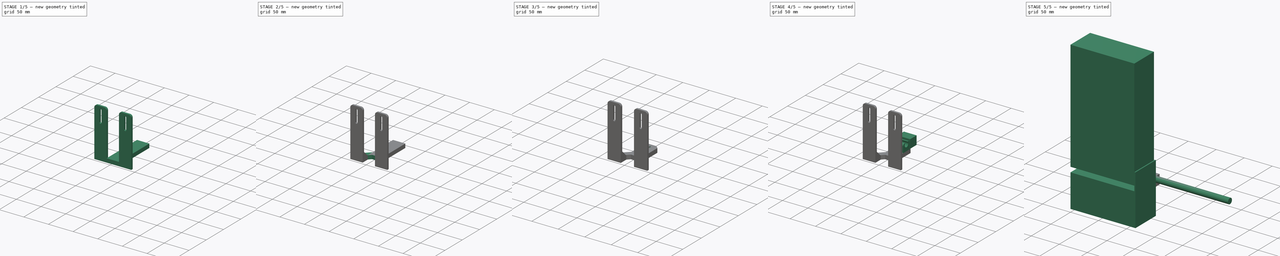
[diagram: build sequence overview — one tinted view per stage of 5, left to right]
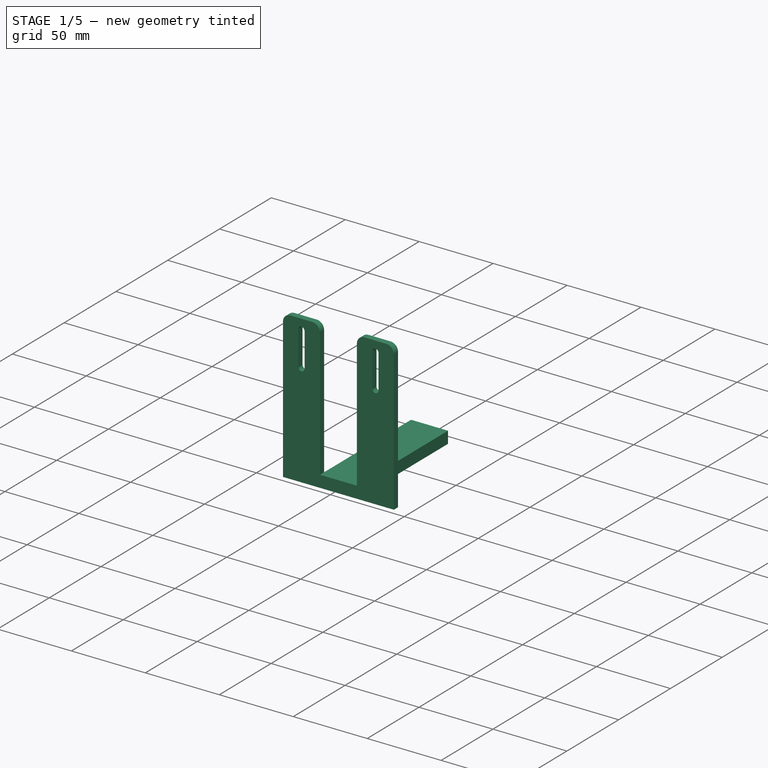
[diagram: stage 1 of 5 — iso view after this stage's code; geometry added in this stage tinted green]
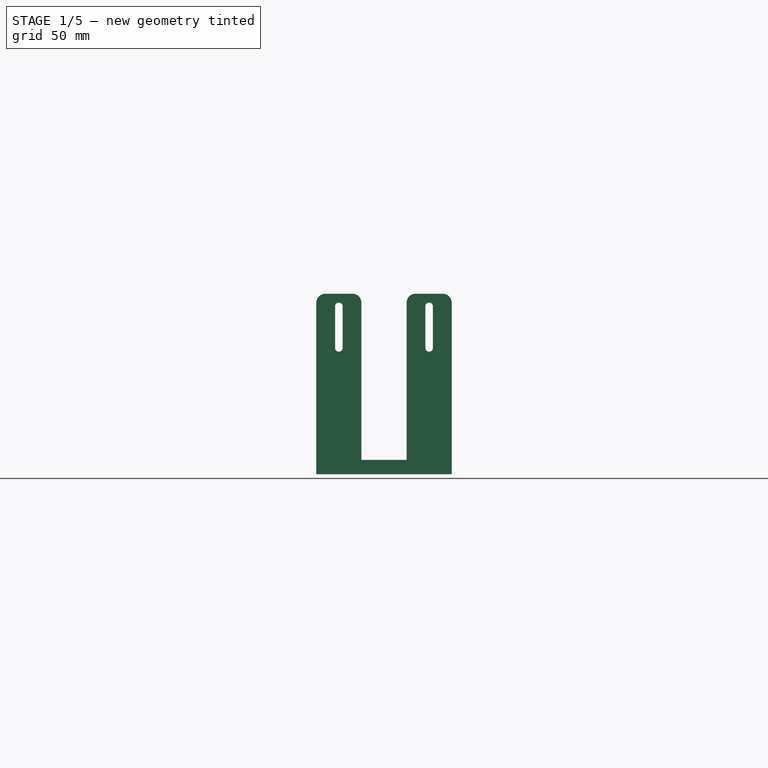
[diagram: stage 1 of 5 — front view after this stage's code; geometry added in this stage tinted green]
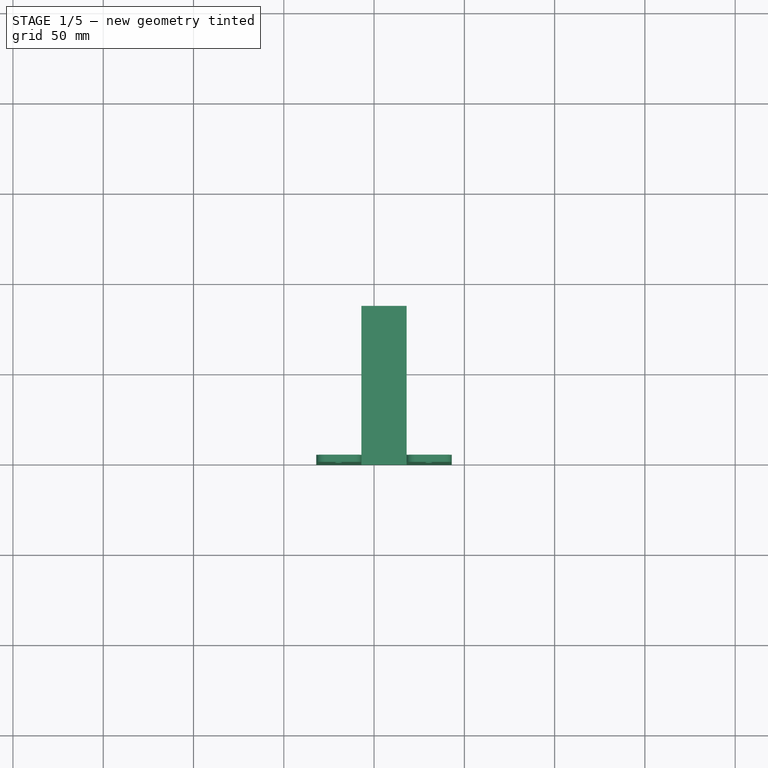
[diagram: stage 1 of 5 — top view after this stage's code; geometry added in this stage tinted green]
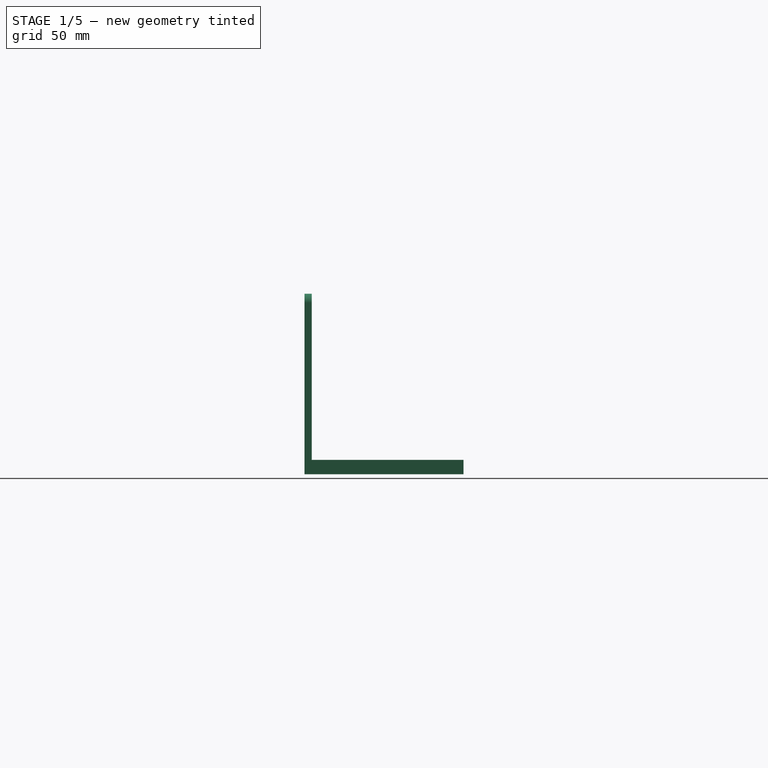
[diagram: stage 1 of 5 — right view after this stage's code; geometry added in this stage tinted green]
FCSTD DOCUMENT  (FreeCAD 0.14R2935 (Git))
Label: sujeccion-fuente-meta
License: CC-BY 3.0
LicenseURL: http://creativecommons.org/licenses/by/3.0/
objects: Part::Box×10, Sketcher::SketchObject×8, PartDesign::Pocket×8, PartDesign::Chamfer×6, Part::Cylinder×2, PartDesign::Fillet×2, Part::MultiFuse×2, Part::Cut×2, App::DocumentObjectGroup×1, Part::Feature×1
note: 49 computed .brp shape members not serialized (recipe doc carries the construction recipe); baked Part::Feature solids carry a one-line shape summary decoded from their .brp

FEATURE [App::DocumentObjectGroup] Group  label="Fuente"
  Group = -> [Box,Pocket]
FEATURE [Part::Feature] Solid
  Placement = pos=(181,121,0) rot=(0,0,1;1.5708rad)
  shape: bbox 22 x 18 x 47 mm, 2086 faces (baked)
FEATURE [Part::Box] Box002
  Height = 100
  Length = 75
  Placement = pos=(18,50,0) rot=(0,0,1;0rad)
  Width = 4
FEATURE [Part::Box] Box005
  Height = 8
  Length = 25
  Placement = pos=(43,53,0) rot=(0,0,1;0rad)
  Width = 85
FEATURE [Sketcher::SketchObject] Sketch001
  ExternalGeometry = -> [Box002]
  Placement = pos=(18,54,0) rot=(0,0.707107,0.707107;3.14159rad)
  Support = -> Box002 [Face4]
  sketch-geometry (21):
    g0: LineSegment [constr] StartX=-75 StartY=93 StartZ=0 EndX=-62.5 EndY=93 EndZ=0
    g1: LineSegment [constr] StartX=-62.5 StartY=93 StartZ=0 EndX=-12.5 EndY=93 EndZ=0
    g2: LineSegment [constr] StartX=-12.5 StartY=93 StartZ=0 EndX=0 EndY=93 EndZ=0
    g3: LineSegment [constr] StartX=-64.6 StartY=93 StartZ=0 EndX=-60.4 EndY=93 EndZ=0
    g4: LineSegment StartX=-60.4 StartY=93 StartZ=0 EndX=-60.4 EndY=70 EndZ=0
    g5: LineSegment [constr] StartX=-60.4 StartY=70 StartZ=0 EndX=-64.6 EndY=70 EndZ=0
    g6: LineSegment StartX=-64.6 StartY=70 StartZ=0 EndX=-64.6 EndY=93 EndZ=0
    g7: ArcOfCircle CenterX=-62.5 CenterY=93 CenterZ=0 NormalX=0 NormalY=0 NormalZ=1 Radius=2.1 StartAngle=0 EndAngle=3.14159
    g8: ArcOfCircle CenterX=-62.5 CenterY=70 CenterZ=0 NormalX=0 NormalY=0 NormalZ=1 Radius=2.1 StartAngle=3.14159 EndAngle=6.28319
    g9: LineSegment [constr] StartX=-14.6 StartY=93 StartZ=0 EndX=-10.4 EndY=93 EndZ=0
    g10: LineSegment StartX=-10.4 StartY=93 StartZ=0 EndX=-10.4 EndY=70 EndZ=0
    g11: LineSegment [constr] StartX=-10.4 StartY=70 StartZ=0 EndX=-14.6 EndY=70 EndZ=0
    g12: LineSegment StartX=-14.6 StartY=70 StartZ=0 EndX=-14.6 EndY=93 EndZ=0
    g13: ArcOfCircle CenterX=-12.5 CenterY=93 CenterZ=0 NormalX=0 NormalY=0 NormalZ=1 Radius=2.1 StartAngle=0 EndAngle=3.14159
    g14: ArcOfCircle CenterX=-12.5 CenterY=70 CenterZ=0 NormalX=0 NormalY=0 NormalZ=1 Radius=2.1 StartAngle=3.14159 EndAngle=6.28319
    g15: LineSegment [constr] StartX=-75 StartY=100 StartZ=0 EndX=-50 EndY=100 EndZ=0
    g16: LineSegment StartX=-50 StartY=100 StartZ=0 EndX=-25 EndY=100 EndZ=0
    g17: LineSegment [constr] StartX=-25 StartY=100 StartZ=0 EndX=0 EndY=100 EndZ=0
    g18: LineSegment StartX=-25 StartY=100 StartZ=0 EndX=-25 EndY=8 EndZ=0
    g19: LineSegment StartX=-25 StartY=8 StartZ=0 EndX=-50 EndY=8 EndZ=0
    g20: LineSegment StartX=-50 StartY=8 StartZ=0 EndX=-50 EndY=100 EndZ=0
  constraints (61):
    c: PointOnObject(g0,g-4)
    c: Horizontal(g0)
    c: Coincident(g0,g1)
    c: Horizontal(g1)
    c: Coincident(g1,g2)
    c: PointOnObject(g2,g-2)
    c: Horizontal(g2)
    c: Equal(g0,g2)
    c: Coincident(g3,g4)
    c: Coincident(g4,g5)
    c: Coincident(g5,g6)
    c: Coincident(g6,g3)
    c: Horizontal(g3)
    c: Horizontal(g5)
    c: Vertical(g4)
    c: Vertical(g6)
    c: PointOnObject(g7,g3)
    c: Coincident(g7,g3)
    c: Coincident(g7,g3)
    c: PointOnObject(g8,g5)
    c: Coincident(g8,g5)
    c: Coincident(g8,g4)
    c: Coincident(g7,g0)
    c: Coincident(g9,g10)
    c: Coincident(g10,g11)
    c: Coincident(g11,g12)
    c: Coincident(g12,g9)
    c: Horizontal(g9)
    c: Horizontal(g11)
    c: Vertical(g10)
    c: Vertical(g12)
    c: PointOnObject(g13,g9)
    c: Coincident(g13,g9)
    c: Coincident(g13,g9)
    c: PointOnObject(g14,g11)
    c: Coincident(g14,g11)
    c: Coincident(g14,g10)
    c: Equal(g5,g11)
    c: Equal(g4,g12)
    c: Coincident(g1,g13)
    c: Distance(g5) = 4.2
    c: Distance(g1) = 50
    c: DistanceY(g-1,g0) = 93
    c: DistanceY(g-1,g8) = 70
    c: Horizontal(g15)
    c: Coincident(g15,g16)
    c: Horizontal(g16)
    c: Coincident(g16,g17)
    c: Horizontal(g17)
    c: Coincident(g16,g18)
    c: Vertical(g18)
    c: Coincident(g18,g19)
    c: Horizontal(g19)
    c: Coincident(g19,g20)
    c: Vertical(g20)
    c: Coincident(g20,g15)
    c: Equal(g17,g15)
    c: Distance(g16) = 25
    c: Coincident(g17,g-3)
    c: DistanceY(g-1,g18) = 8
    c: Coincident(g15,g-4)
FEATURE [PartDesign::Pocket] Pocket001
  Length = 5
  Placement = pos=(18,50,0) rot=(0,0,1;0rad)
  Sketch = -> Sketch001
  Type = 0
FEATURE [PartDesign::Fillet] Fillet
  Base = -> Pocket001 [Edge37,Edge38,Edge21,Edge2]
  Placement = pos=(18,50,0) rot=(0,0,1;0rad)
  Radius = 5
FEATURE [Part::MultiFuse] Fusion
  Shapes = -> [Fillet,Box005]
FEATURE [Part::Box] Box008
  Height = 8
  Length = 25
  Placement = pos=(43,103,0) rot=(0,0,1;0rad)
  Width = 35
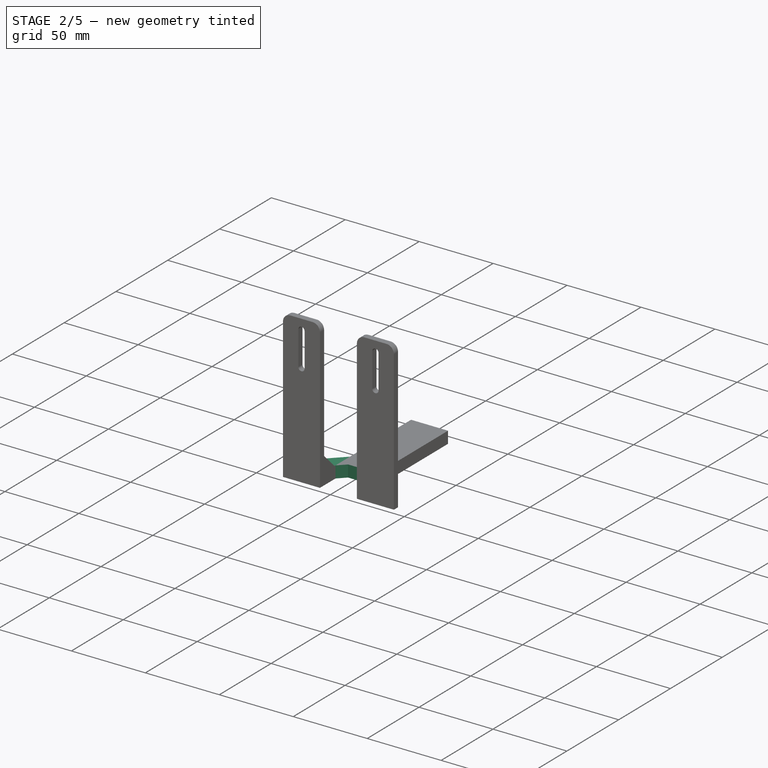
[diagram: stage 2 of 5 — iso view after this stage's code; geometry added in this stage tinted green]
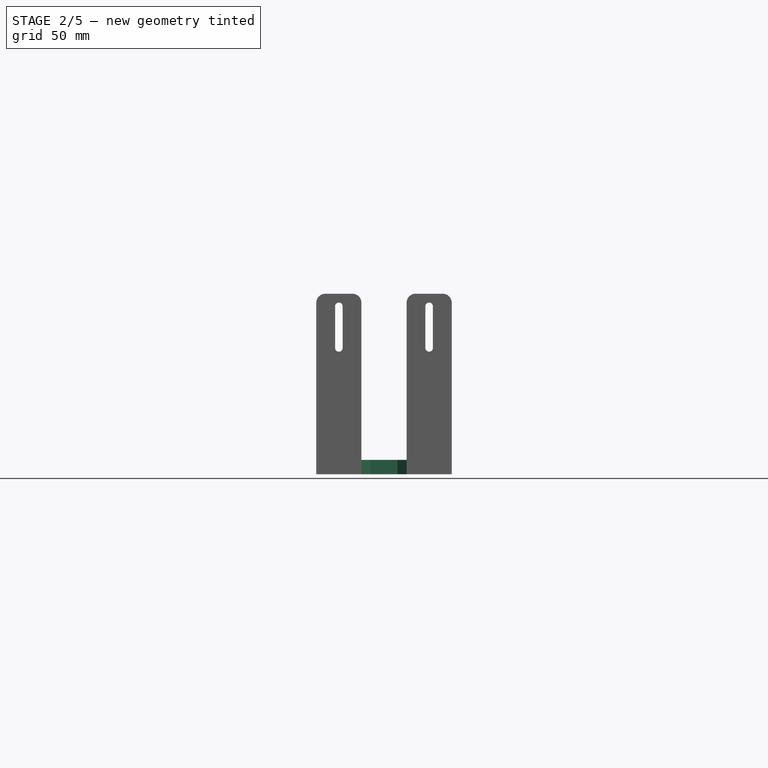
[diagram: stage 2 of 5 — front view after this stage's code; geometry added in this stage tinted green]
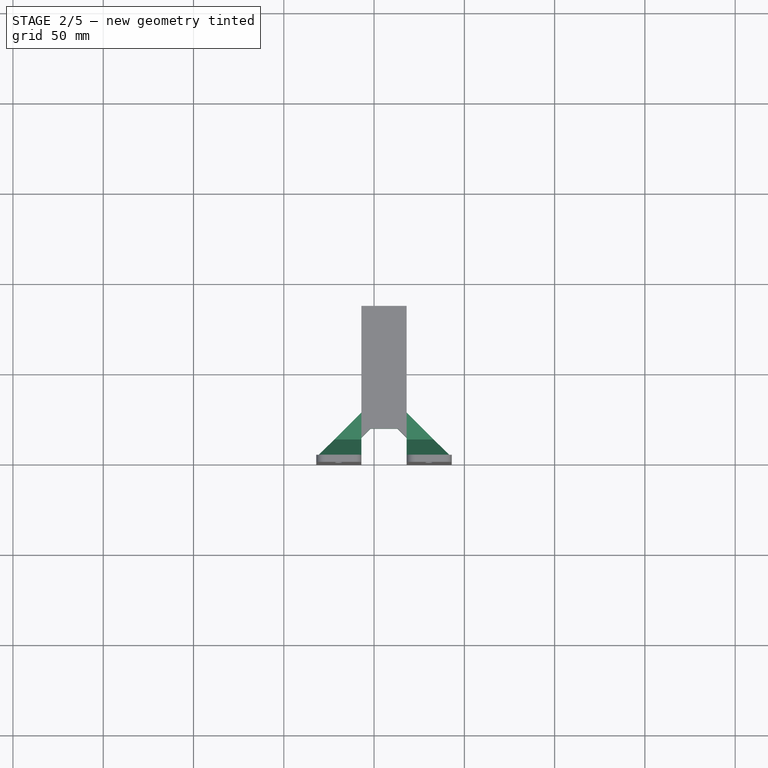
[diagram: stage 2 of 5 — top view after this stage's code; geometry added in this stage tinted green]
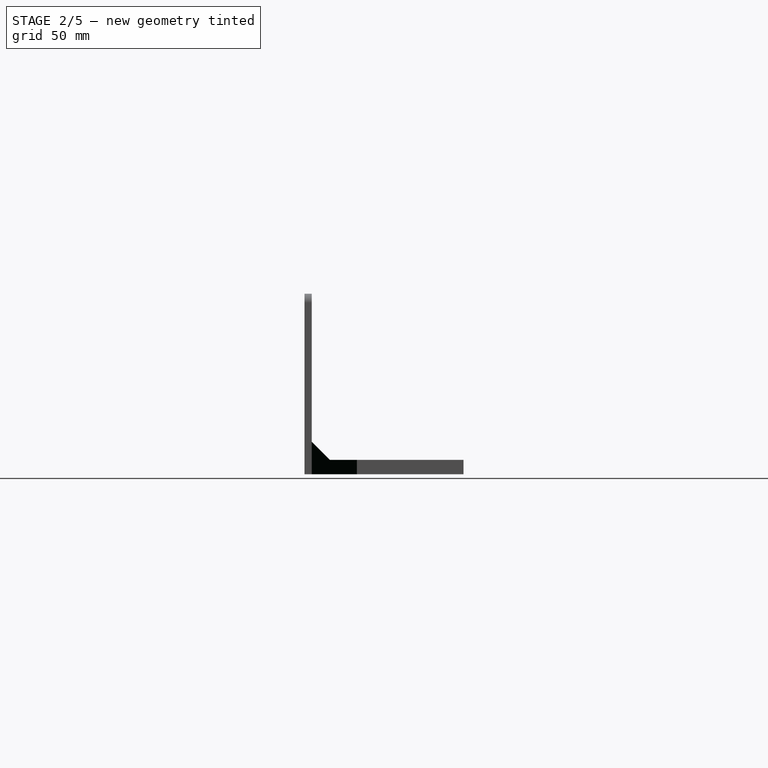
[diagram: stage 2 of 5 — right view after this stage's code; geometry added in this stage tinted green]
FEATURE [PartDesign::Chamfer] Chamfer
  Base = -> Fusion [Edge10,Edge7]
  Size = 24.99
FEATURE [Sketcher::SketchObject] Sketch002
  ExternalGeometry = -> [Chamfer]
  Placement = pos=(0,0,8) rot=(0,0,1;0rad)
  Support = -> Chamfer [Face2]
  sketch-geometry (4):
    g0: LineSegment StartX=43 StartY=70 StartZ=0 EndX=68 EndY=70 EndZ=0
    g1: LineSegment StartX=68 StartY=70 StartZ=0 EndX=68 EndY=50 EndZ=0
    g2: LineSegment StartX=68 StartY=50 StartZ=0 EndX=43 EndY=50 EndZ=0
    g3: LineSegment StartX=43 StartY=50 StartZ=0 EndX=43 EndY=70 EndZ=0
  constraints (11):
    c: Coincident(g0,g1)
    c: Coincident(g1,g2)
    c: Coincident(g2,g3)
    c: Coincident(g3,g0)
    c: Horizontal(g0)
    c: Horizontal(g2)
    c: Vertical(g1)
    c: Vertical(g3)
    c: Coincident(g-3,g1)
    c: Coincident(g-3,g2)
    c: Distance(g1) = 20
FEATURE [PartDesign::Pocket] Pocket002
  Length = 10
  Sketch = -> Sketch002
  Type = 0
FEATURE [PartDesign::Chamfer] Chamfer001
  Base = -> Pocket002 [Edge40,Edge39]
  Size = 5
FEATURE [PartDesign::Chamfer] Chamfer002  label="V1"
  Base = -> Chamfer001 [Edge3,Edge10]
  Size = 10
FEATURE [Sketcher::SketchObject] Sketch003
  ExternalGeometry = -> [Chamfer002]
  Placement = pos=(0,0,0) rot=(1,0,0;3.14159rad)
  Support = -> Chamfer002 [Face15]
  sketch-geometry (8):
    g0: LineSegment [constr] StartX=43 StartY=-132 StartZ=0 EndX=55.5 EndY=-132 EndZ=0
    g1: LineSegment [constr] StartX=55.5 StartY=-132 StartZ=0 EndX=68 EndY=-132 EndZ=0
    g2: LineSegment [constr] StartX=53.8 StartY=-132 StartZ=0 EndX=57.2 EndY=-132 EndZ=0
    g3: LineSegment StartX=57.2 StartY=-132 StartZ=0 EndX=57.2 EndY=-107 EndZ=0
    g4: LineSegment [constr] StartX=57.2 StartY=-107 StartZ=0 EndX=53.8 EndY=-107 EndZ=0
    g5: LineSegment StartX=53.8 StartY=-107 StartZ=0 EndX=53.8 EndY=-132 EndZ=0
    g6: ArcOfCircle CenterX=55.5 CenterY=-132 CenterZ=0 NormalX=0 NormalY=0 NormalZ=1 Radius=1.7 StartAngle=3.14159 EndAngle=6.28319
    g7: ArcOfCircle CenterX=55.5 CenterY=-107 CenterZ=0 NormalX=0 NormalY=0 NormalZ=1 Radius=1.7 StartAngle=0 EndAngle=3.14159
  constraints (24):
    c: PointOnObject(g0,g-3)
    c: Coincident(g0,g1)
    c: PointOnObject(g1,g-4)
    c: Horizontal(g0)
    c: Horizontal(g1)
    c: Equal(g0,g1)
    c: Coincident(g2,g3)
    c: Coincident(g3,g4)
    c: Coincident(g4,g5)
    c: Coincident(g5,g2)
    c: Horizontal(g2)
    c: Horizontal(g4)
    c: Vertical(g3)
    c: Vertical(g5)
    c: PointOnObject(g6,g2)
    c: Coincident(g6,g2)
    c: Coincident(g6,g2)
    c: PointOnObject(g7,g4)
    c: Coincident(g7,g4)
    c: Coincident(g7,g3)
    c: Coincident(g0,g6)
    c: Radius(g6) = 1.7
    c: Distance(g1,g-4) = 6
    c: Distance(g0,g7) = 25
FEATURE [PartDesign::Pocket] Pocket003
  Length = 11
  Sketch = -> Sketch003
  Type = 0
FEATURE [Sketcher::SketchObject] Sketch004
  ExternalGeometry = -> [Pocket003]
  Placement = pos=(0,0,0) rot=(1,0,0;3.14159rad)
  Support = -> Pocket003 [Face19]
  sketch-geometry (6):
    g0: LineSegment [constr] StartX=59.25 StartY=-132 StartZ=0 EndX=51.75 EndY=-132 EndZ=0
    g1: LineSegment StartX=51.75 StartY=-132 StartZ=0 EndX=51.75 EndY=-107 EndZ=0
    g2: LineSegment [constr] StartX=51.75 StartY=-107 StartZ=0 EndX=59.25 EndY=-107 EndZ=0
    g3: LineSegment StartX=59.25 StartY=-107 StartZ=0 EndX=59.25 EndY=-132 EndZ=0
    g4: ArcOfCircle CenterX=55.5 CenterY=-132 CenterZ=0 NormalX=0 NormalY=0 NormalZ=1 Radius=3.75 StartAngle=3.14159 EndAngle=6.28319
    g5: ArcOfCircle CenterX=55.5 CenterY=-107 CenterZ=0 NormalX=0 NormalY=0 NormalZ=1 Radius=3.75 StartAngle=0 EndAngle=3.14159
  constraints (17):
    c: Coincident(g0,g1)
    c: Coincident(g1,g2)
    c: Coincident(g2,g3)
    c: Coincident(g3,g0)
    c: Horizontal(g0)
    c: Horizontal(g2)
    c: Vertical(g1)
    c: Vertical(g3)
    c: PointOnObject(g4,g0)
    c: Coincident(g4,g0)
    c: Coincident(g4,g0)
    c: Coincident(g4,g-6)
    c: PointOnObject(g5,g2)
    c: Coincident(g5,g1)
    c: Coincident(g5,g2)
    c: Coincident(g5,g-5)
    c: Radius(g4) = 3.75
FEATURE [PartDesign::Pocket] Pocket004
  Length = 4.5
  Sketch = -> Sketch004
  Type = 0
FEATURE [PartDesign::Chamfer] Chamfer004
  Base = -> Pocket004 [Edge38,Edge33]
  Size = 5
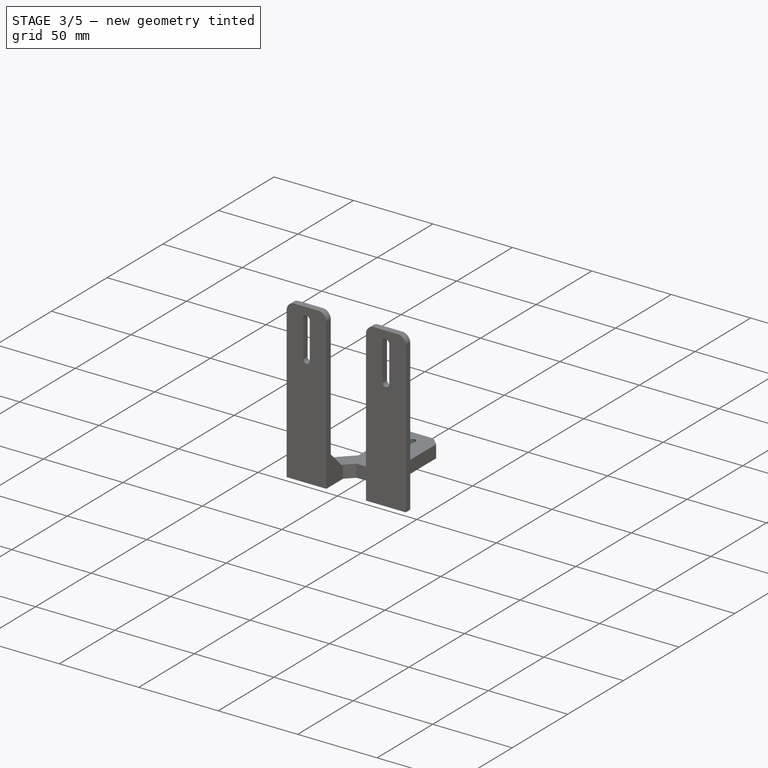
[diagram: stage 3 of 5 — iso view after this stage's code; geometry added in this stage tinted green]
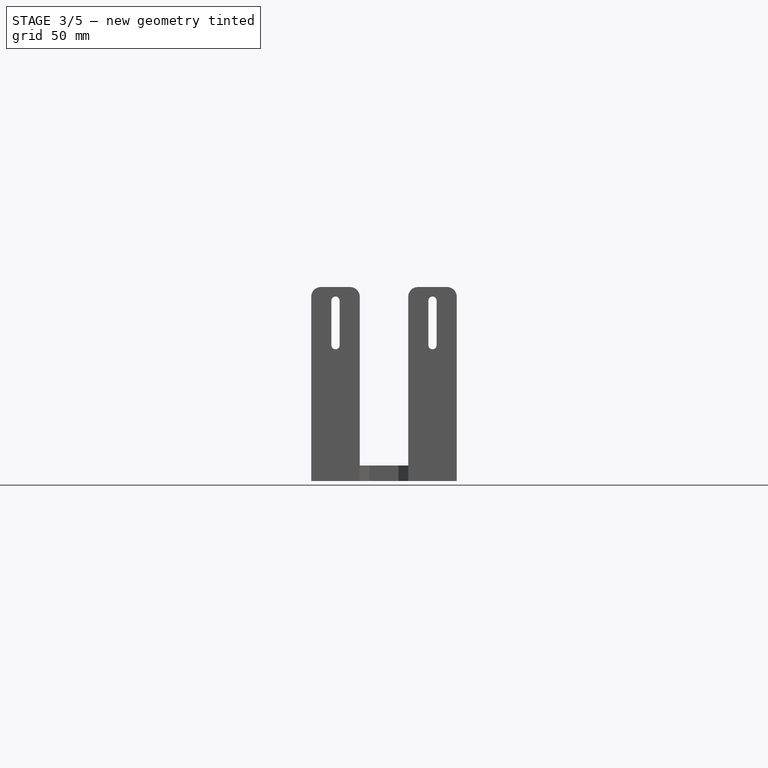
[diagram: stage 3 of 5 — front view after this stage's code; geometry added in this stage tinted green]
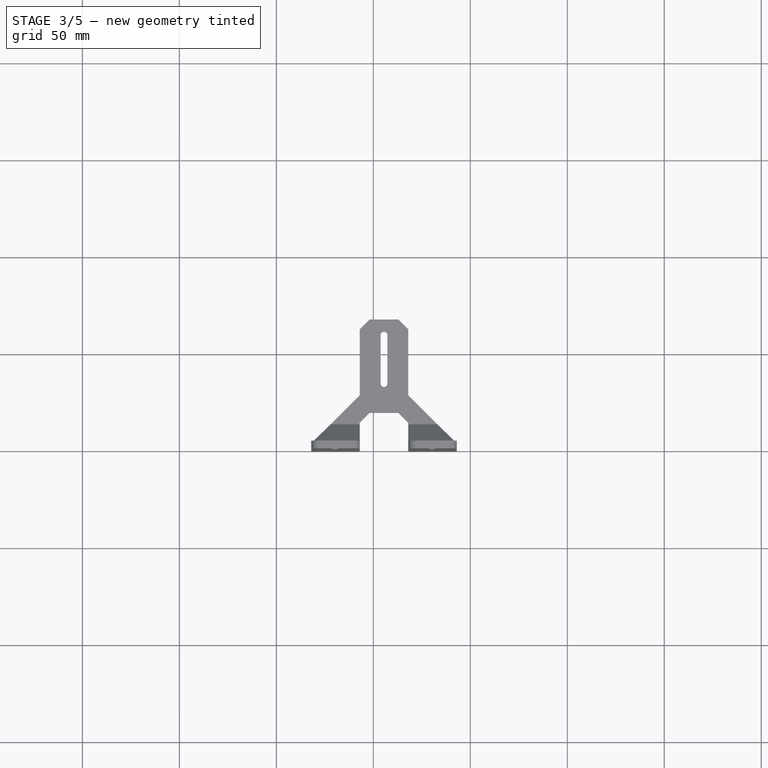
[diagram: stage 3 of 5 — top view after this stage's code; geometry added in this stage tinted green]
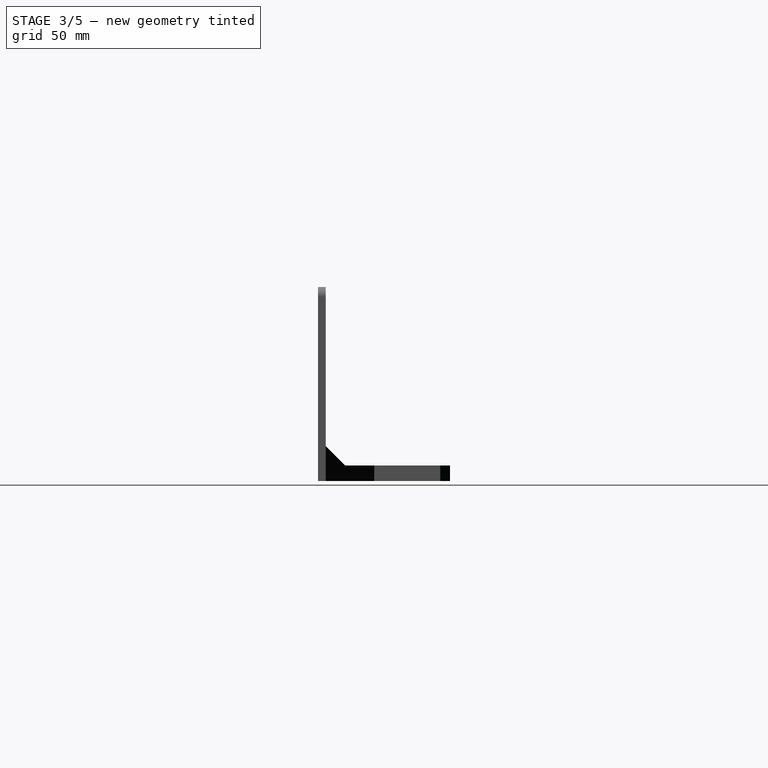
[diagram: stage 3 of 5 — right view after this stage's code; geometry added in this stage tinted green]
FEATURE [Part::Box] Box009
  Height = 8
  Length = 25
  Placement = pos=(43,118,0) rot=(0,0,1;0rad)
  Width = 20
FEATURE [Part::MultiFuse] Fusion001
  Shapes = -> [Box008,Chamfer004]
FEATURE [Part::Cut] Cut001
  Base = -> Fusion001
  Tool = -> Box009
FEATURE [PartDesign::Chamfer] Chamfer005
  Base = -> Cut001 [Edge44,Edge19]
  Size = 5
FEATURE [Sketcher::SketchObject] Sketch006
  ExternalGeometry = -> [Chamfer005]
  Placement = pos=(0,0,-8e-12) rot=(1,0,0;3.14159rad)
  Support = -> Chamfer005 [Face16]
  sketch-geometry (10):
    g0: LineSegment [constr] StartX=53.75 StartY=-85 StartZ=0 EndX=57.25 EndY=-85 EndZ=0
    g1: LineSegment StartX=57.25 StartY=-85 StartZ=0 EndX=57.25 EndY=-110 EndZ=0
    g2: LineSegment [constr] StartX=57.25 StartY=-110 StartZ=0 EndX=53.75 EndY=-110 EndZ=0
    g3: LineSegment StartX=53.75 StartY=-110 StartZ=0 EndX=53.75 EndY=-85 EndZ=0
    g4: ArcOfCircle CenterX=55.5 CenterY=-110 CenterZ=0 NormalX=0 NormalY=0 NormalZ=1 Radius=1.75 StartAngle=3.14159 EndAngle=6.28319
    g5: ArcOfCircle CenterX=55.5 CenterY=-85 CenterZ=0 NormalX=0 NormalY=0 NormalZ=1 Radius=1.75 StartAngle=0 EndAngle=3.14159
    g6: LineSegment [constr] StartX=43 StartY=-97.5 StartZ=0 EndX=55.5 EndY=-97.5 EndZ=0
    g7: LineSegment [constr] StartX=55.5 StartY=-97.5 StartZ=0 EndX=68 EndY=-97.5 EndZ=0
    g8: LineSegment [constr] StartX=55.5 StartY=-85 StartZ=0 EndX=55.5 EndY=-97.5 EndZ=0
    g9: LineSegment [constr] StartX=55.5 StartY=-97.5 StartZ=0 EndX=55.5 EndY=-110 EndZ=0
  constraints (29):
    c: Coincident(g0,g1)
    c: Coincident(g1,g2)
    c: Coincident(g2,g3)
    c: Coincident(g3,g0)
    c: Horizontal(g0)
    c: Horizontal(g2)
    c: Vertical(g1)
    c: Vertical(g3)
    c: PointOnObject(g4,g2)
    c: Coincident(g4,g2)
    c: Coincident(g4,g1)
    c: PointOnObject(g5,g0)
    c: Coincident(g5,g0)
    c: Coincident(g5,g0)
    c: PointOnObject(g6,g-4)
    c: Horizontal(g6)
    c: Coincident(g6,g7)
    c: PointOnObject(g7,g-5)
    c: Horizontal(g7)
    c: Equal(g6,g7)
    c: Coincident(g8,g5)
    c: Vertical(g8)
    c: Coincident(g8,g9)
    c: Coincident(g9,g4)
    c: Equal(g8,g9)
    c: Coincident(g8,g6)
    c: Radius(g5) = 1.75
    c: Distance(g1) = 25
    c: Distance(g4,g-3) = 8
FEATURE [PartDesign::Pocket] Pocket006
  Length = 8
  Sketch = -> Sketch006
  Type = 0
FEATURE [Sketcher::SketchObject] Sketch007
  ExternalGeometry = -> [Pocket006]
  Placement = pos=(0,0,-8e-12) rot=(1,0,0;3.14159rad)
  Support = -> Pocket006 [Face20]
  sketch-geometry (4):
    g0: ArcOfCircle CenterX=55.5 CenterY=-85 CenterZ=0 NormalX=0 NormalY=0 NormalZ=1 Radius=4.27086 StartAngle=6.18431 EndAngle=9.52365
    g1: ArcOfCircle CenterX=55.5 CenterY=-110 CenterZ=0 NormalX=0 NormalY=0 NormalZ=1 Radius=4.25 StartAngle=3.14159 EndAngle=6.28319
    g2: LineSegment StartX=51.25 StartY=-85.4216 StartZ=0 EndX=51.25 EndY=-110 EndZ=0
    g3: LineSegment StartX=59.75 StartY=-85.4216 StartZ=0 EndX=59.75 EndY=-110 EndZ=0
  constraints (9):
    c: Coincident(g0,g-3)
    c: Coincident(g1,g-4)
    c: Coincident(g2,g0)
    c: Coincident(g2,g1)
    c: Vertical(g2)
    c: Coincident(g3,g0)
    c: Coincident(g3,g1)
    c: Vertical(g3)
    c: Radius(g1) = 4.25
FEATURE [PartDesign::Pocket] Pocket007
  Length = 5
  Sketch = -> Sketch007
  Type = 0
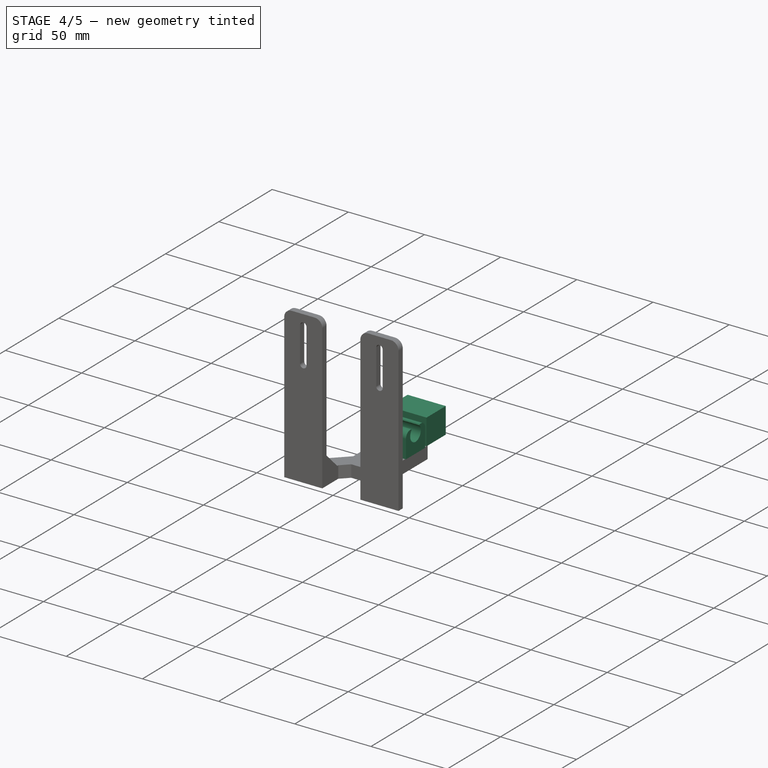
[diagram: stage 4 of 5 — iso view after this stage's code; geometry added in this stage tinted green]
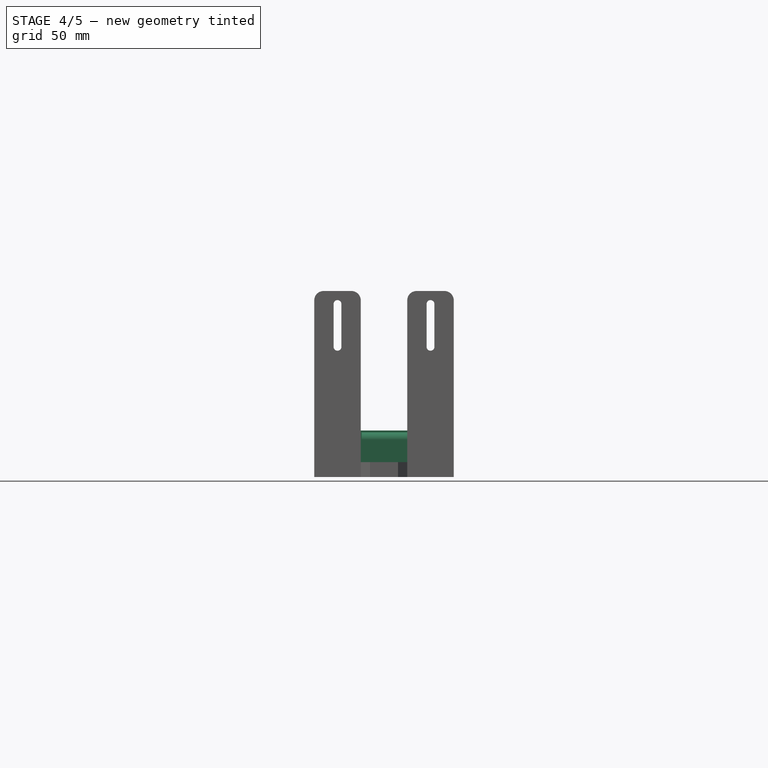
[diagram: stage 4 of 5 — front view after this stage's code; geometry added in this stage tinted green]
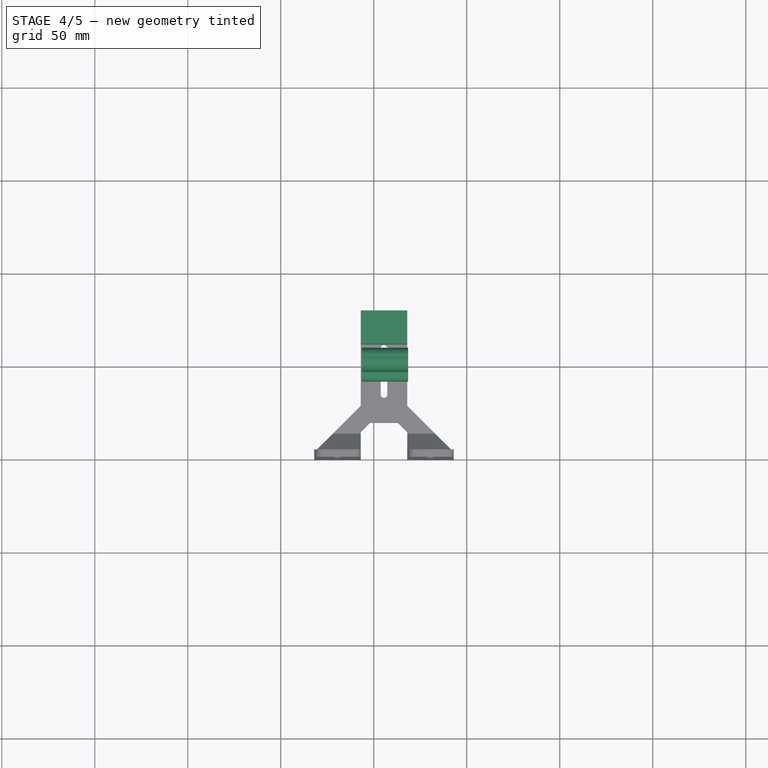
[diagram: stage 4 of 5 — top view after this stage's code; geometry added in this stage tinted green]
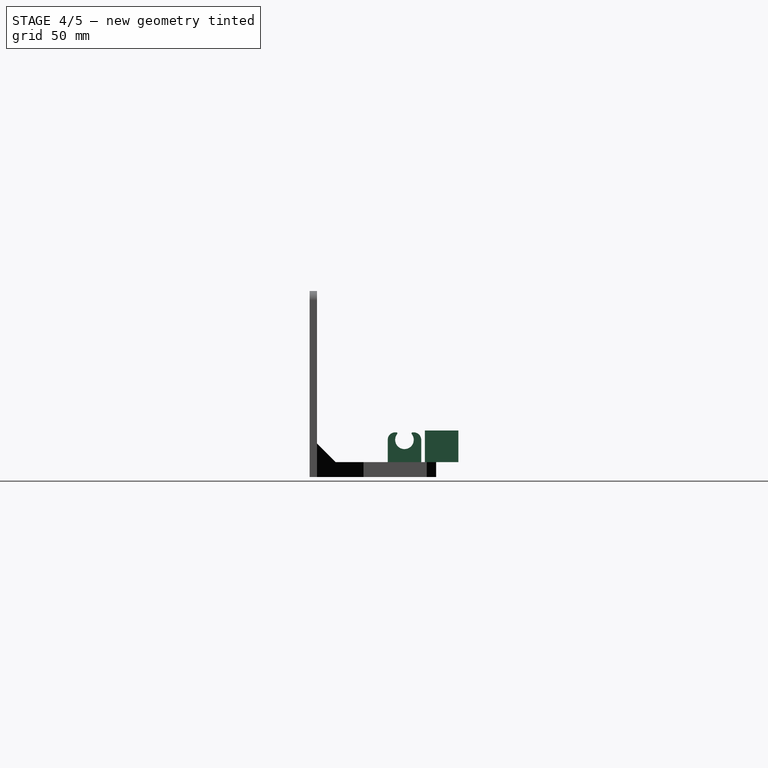
[diagram: stage 4 of 5 — right view after this stage's code; geometry added in this stage tinted green]
FEATURE [Part::Cylinder] Cylinder
  Angle = 360
  Height = 200
  Placement = pos=(0,121,20) rot=(0,1,0;1.5708rad)
  Radius = 5
FEATURE [Part::Box] Box004
  Height = 16
  Length = 25
  Placement = pos=(43.5,112,8) rot=(0,0,1;0rad)
  Width = 18
FEATURE [Part::Box] Box007  label="2a-opcion"
  Height = 17
  Length = 25
  Placement = pos=(43,112,8) rot=(0,0,1;0rad)
  Width = 18
FEATURE [PartDesign::Pocket] Pocket005
  Length = 10
  Placement = pos=(43.5,112,8) rot=(0,0,1;0rad)
  Sketch = -> Sketch005
  Type = 0
FEATURE [Part::Cut] Cut
  Base = -> Pocket005
  Placement = pos=(0,-20,0) rot=(0,0,1;0rad)
  Tool = -> Cylinder
FEATURE [PartDesign::Fillet] Fillet001
  Base = -> Cut [Edge19,Edge10]
  Placement = pos=(0,-20,0) rot=(0,0,1;0rad)
  Radius = 4
FEATURE [PartDesign::Chamfer] Chamfer003
  Base = -> Fillet001 [Edge22,Edge11]
  Placement = pos=(0,-20,0) rot=(0,0,1;0rad)
  Size = 1
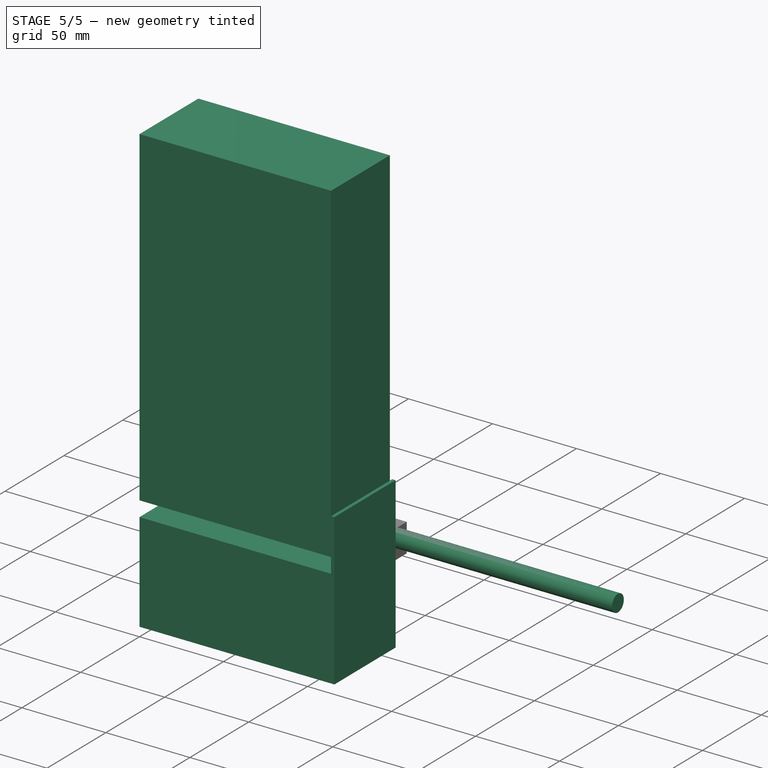
[diagram: stage 5 of 5 — iso view after this stage's code; geometry added in this stage tinted green]
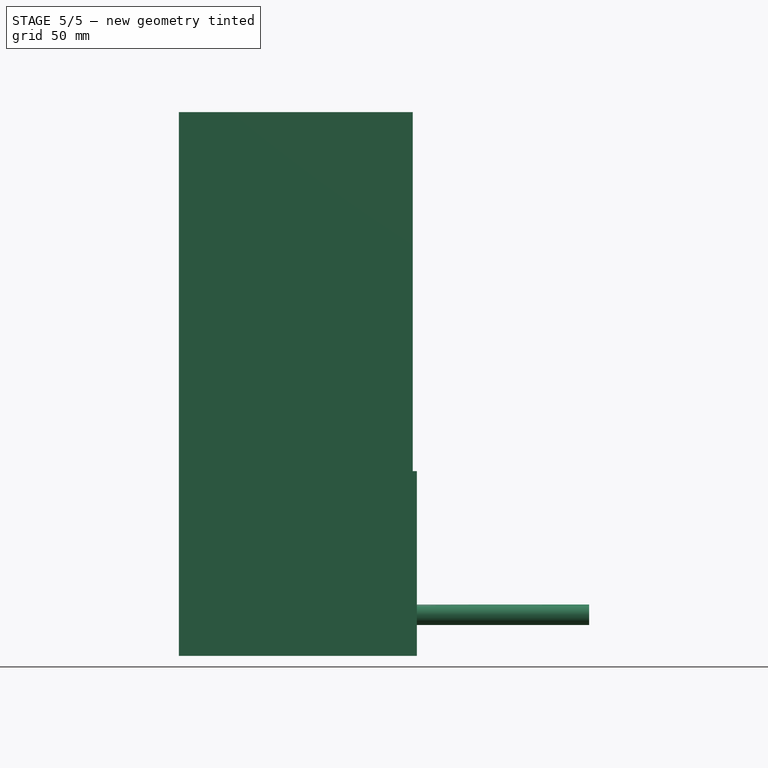
[diagram: stage 5 of 5 — front view after this stage's code; geometry added in this stage tinted green]
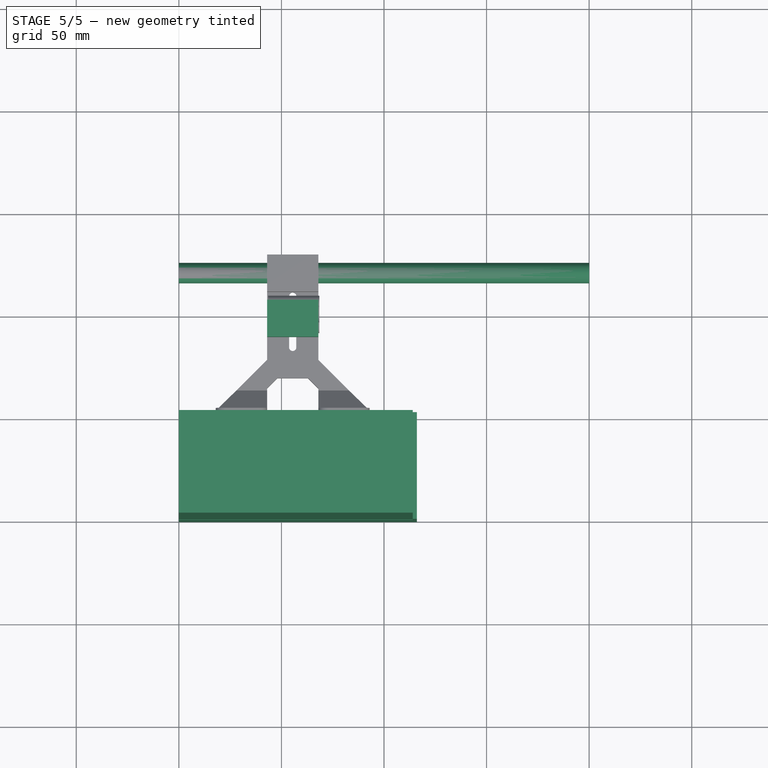
[diagram: stage 5 of 5 — top view after this stage's code; geometry added in this stage tinted green]
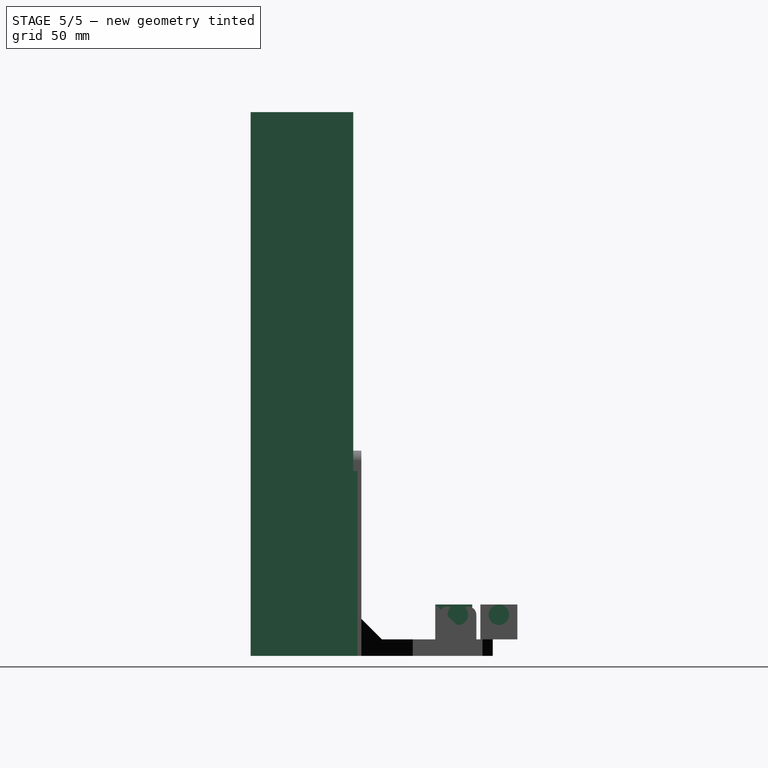
[diagram: stage 5 of 5 — right view after this stage's code; geometry added in this stage tinted green]
FEATURE [Part::Box] Box
  Height = 215
  Length = 114
  Placement = pos=(0,0,50) rot=(0,0,1;0rad)
  Width = 50
FEATURE [Part::Box] Box001
  Height = 59
  Length = 114
  Width = 50
FEATURE [Sketcher::SketchObject] Sketch
  ExternalGeometry = -> [Box]
  Placement = pos=(0,0,50) rot=(1,0,0;1.5708rad)
  Support = -> Box [Face3]
  sketch-geometry (4):
    g0: LineSegment StartX=114 StartY=0 StartZ=0 EndX=0 EndY=0 EndZ=0
    g1: LineSegment StartX=0 StartY=0 StartZ=0 EndX=0 EndY=18 EndZ=0
    g2: LineSegment StartX=0 StartY=18 StartZ=0 EndX=114 EndY=18 EndZ=0
    g3: LineSegment StartX=114 StartY=18 StartZ=0 EndX=114 EndY=0 EndZ=0
  constraints (11):
    c: Coincident(g0,g1)
    c: Coincident(g1,g2)
    c: Coincident(g2,g3)
    c: Coincident(g3,g0)
    c: Horizontal(g0)
    c: Horizontal(g2)
    c: Vertical(g1)
    c: Vertical(g3)
    c: Coincident(g0,g-3)
    c: PointOnObject(g1,g-2)
    c: Distance(g1) = 18
FEATURE [PartDesign::Pocket] Pocket
  Length = 25
  Placement = pos=(0,0,50) rot=(0,0,1;0rad)
  Sketch = -> Sketch
  Type = 0
FEATURE [Part::Box] Box003
  Height = 90
  Length = 2
  Placement = pos=(114,0,0) rot=(0,0,1;0rad)
  Width = 52
FEATURE [Sketcher::SketchObject] Sketch005
  ExternalGeometry = -> [Box004]
  Placement = pos=(43.5,112,8) rot=(1,0,0;3.14159rad)
  Support = -> Box004 [Face5]
  sketch-geometry (7):
    g0: LineSegment [constr] StartX=25 StartY=-14.5 StartZ=0 EndX=12.5 EndY=-14.5 EndZ=0
    g1: LineSegment [constr] StartX=12.5 StartY=-14.5 StartZ=0 EndX=0 EndY=-14.5 EndZ=0
    g2: LineSegment [constr] StartX=12.5 StartY=-18 StartZ=0 EndX=12.5 EndY=-14.5 EndZ=0
    g3: LineSegment [constr] StartX=12.5 StartY=-14.5 StartZ=0 EndX=12.5 EndY=-3.5 EndZ=0
    g4: LineSegment [constr] StartX=12.5 StartY=-3.5 StartZ=0 EndX=12.5 EndY=0 EndZ=0
    g5: Circle CenterX=12.5 CenterY=-3.5 CenterZ=0 NormalX=0 NormalY=0 NormalZ=1 Radius=1.45
    g6: Circle CenterX=12.5 CenterY=-14.5 CenterZ=0 NormalX=0 NormalY=0 NormalZ=1 Radius=1.45
  constraints (20):
    c: PointOnObject(g0,g-3)
    c: Horizontal(g0)
    c: Coincident(g0,g1)
    c: PointOnObject(g1,g-2)
    c: Horizontal(g1)
    c: Equal(g1,g0)
    c: PointOnObject(g2,g-4)
    c: Coincident(g2,g0)
    c: Coincident(g2,g3)
    c: Coincident(g3,g4)
    c: PointOnObject(g4,g-1)
    c: Equal(g4,g2)
    c: Vertical(g4)
    c: Vertical(g3)
    c: Vertical(g2)
    c: Coincident(g5,g3)
    c: Coincident(g6,g0)
    c: Equal(g6,g5)
    c: Radius(g5) = 1.45
    c: Distance(g0,g2) = 3.5
FEATURE [Part::Box] Box006
  Height = 17
  Length = 25
  Placement = pos=(43,90,8) rot=(0,0,1;0rad)
  Width = 18
FEATURE [Part::Cylinder] Cylinder001
  Angle = 360
  Height = 200
  Placement = pos=(0,121,20) rot=(0,1,0;1.5708rad)
  Radius = 5
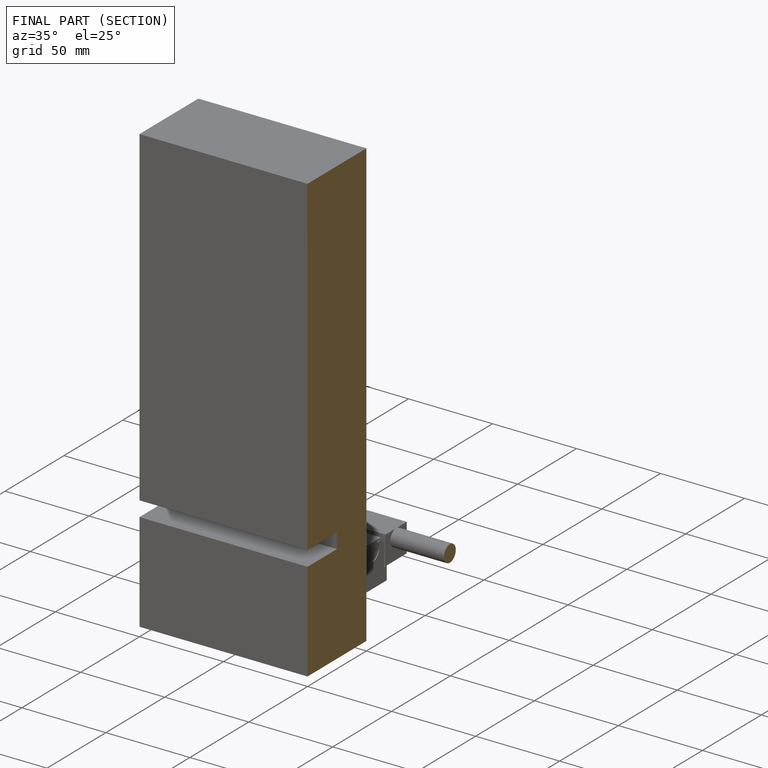
[diagram: finished part — half-section view (interior)]
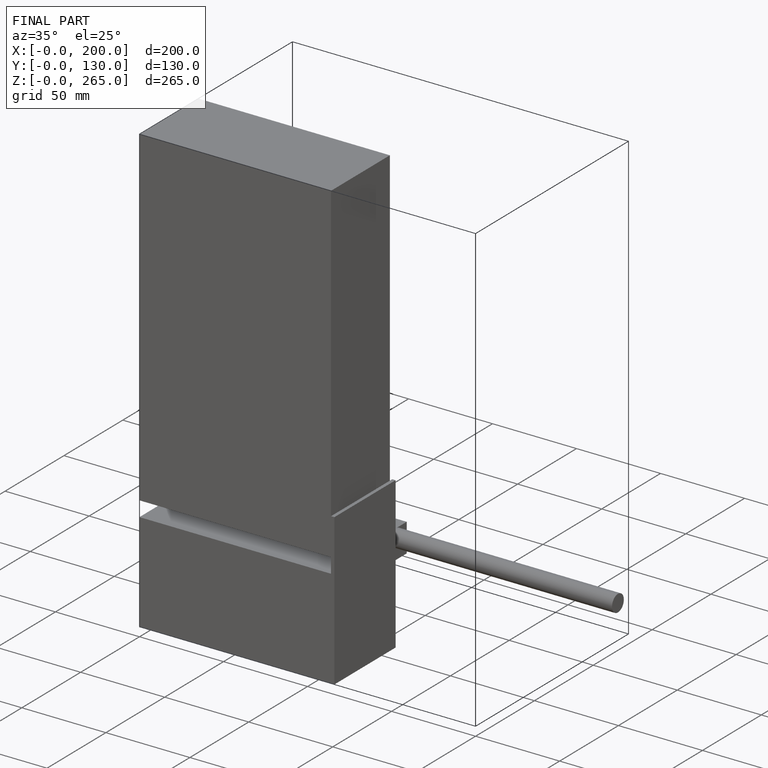
[diagram: finished part — iso view with bounding-box wireframe]
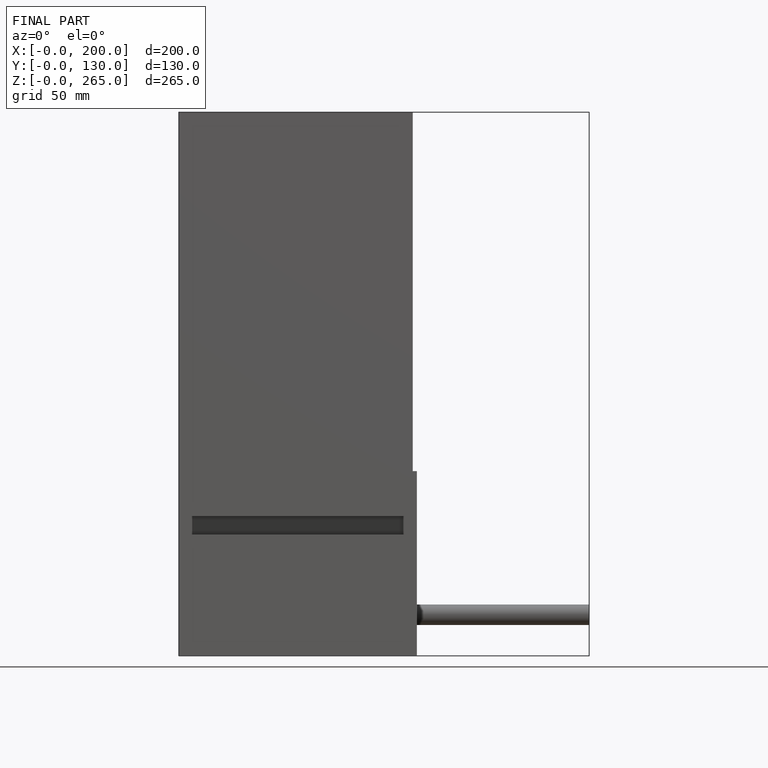
[diagram: finished part — front view with bounding-box wireframe]
